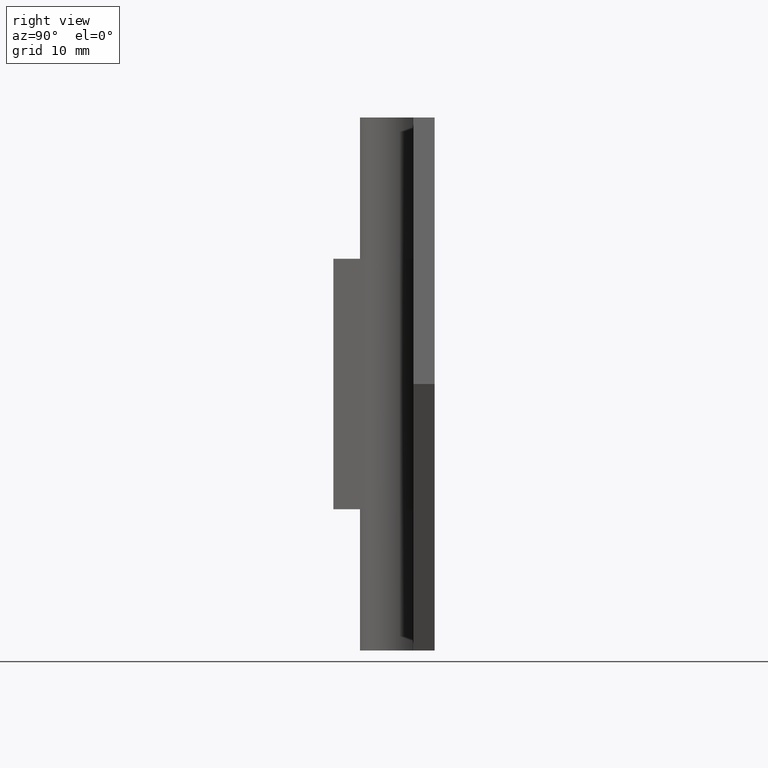
[diagram: clean part render]
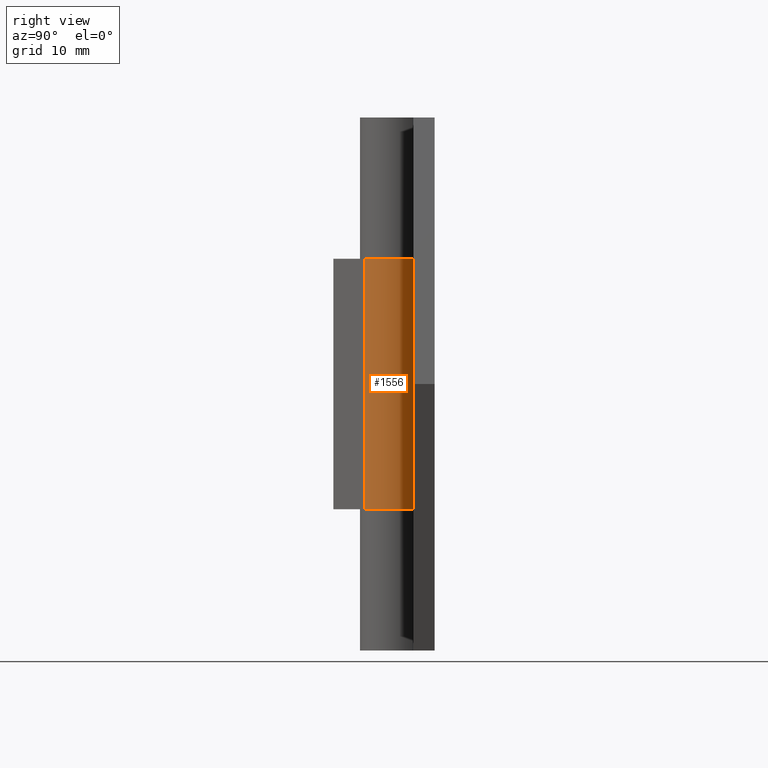
[diagram: same view with one face highlighted and labeled with its STEP entity id]
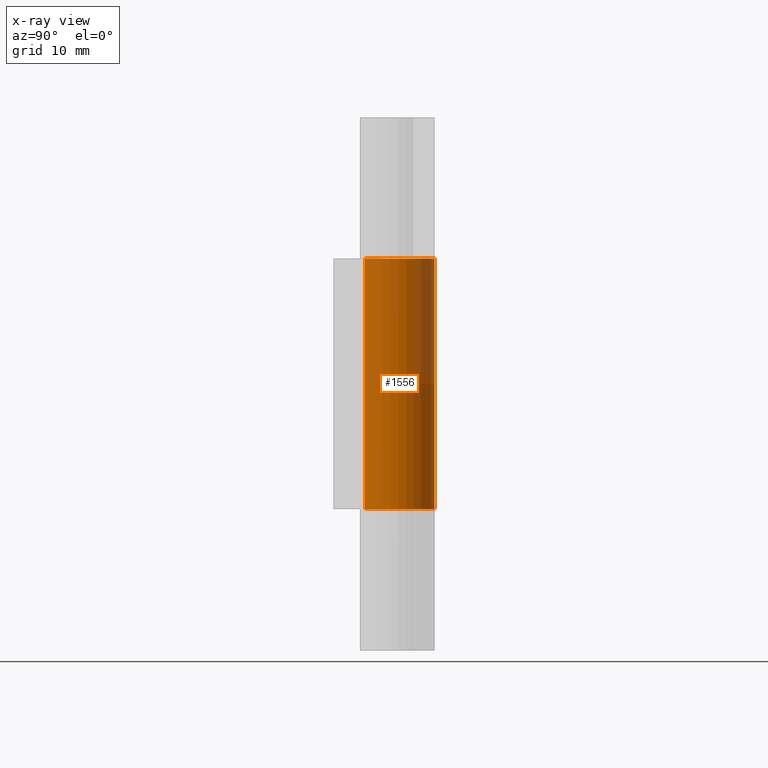
[diagram: x-ray of the same camera — body ghosted, the highlighted face saturated]
A machine part, right view. The second image highlights one B-rep face of the part: STEP entity #1556.
The next image is the same camera in x-ray: the body ghosted, the highlighted face saturated — about 30% of this face is hidden behind the body in this view.
In plain terms, the highlighted face is a freeform B-spline surface patch.
Its self-contained STEP definition (entity closure, byte-faithful):
#1293=CARTESIAN_POINT('',(0.0,3.500000000000000,13.250000000000000));
#1294=VERTEX_POINT('',#1293);
#1300=CARTESIAN_POINT('',(1.749999922191365,-3.031088958168370,13.250000000000000));
#1301=VERTEX_POINT('',#1300);
#1302=CARTESIAN_POINT('',(0.0,3.500000000000000,13.250000000000000));
#1303=CARTESIAN_POINT('',(2.685644493612853,3.499999999999999,13.250000000000007));
#1304=CARTESIAN_POINT('',(3.380740403638624,0.905866614466696,13.250000000000000));
#1305=CARTESIAN_POINT('',(4.075836313664395,-1.688266771066608,13.250000000000007));
#1306=CARTESIAN_POINT('',(1.749999922191366,-3.031088958168370,13.250000000000000));
#1314=(BOUNDED_CURVE()B_SPLINE_CURVE(2,(#1302,#1303,#1304,#1305,#1306),.UNSPECIFIED.,.F.,.U.)B_SPLINE_CURVE_WITH_KNOTS((3,2,3),(0.0,0.500000000000000,1.0),.UNSPECIFIED.)CURVE()GEOMETRIC_REPRESENTATION_ITEM()RATIONAL_B_SPLINE_CURVE((1.0,0.793353336384480,1.0,0.793353336384480,1.0))REPRESENTATION_ITEM(''));
#1315=EDGE_CURVE('',#1294,#1301,#1314,.T.);
#1415=CARTESIAN_POINT('',(1.749999922191365,-3.031088958168370,36.750000000000000));
#1416=VERTEX_POINT('',#1415);
#1422=CARTESIAN_POINT('',(0.0,3.500000000000000,36.750000000000000));
#1423=VERTEX_POINT('',#1422);
#1424=CARTESIAN_POINT('',(0.0,3.500000000000000,36.750000000000000));
#1425=CARTESIAN_POINT('',(2.685644493612853,3.499999999999999,36.749999999999993));
#1426=CARTESIAN_POINT('',(3.380740403638624,0.905866614466696,36.750000000000000));
#1427=CARTESIAN_POINT('',(4.075836313664395,-1.688266771066608,36.749999999999993));
#1428=CARTESIAN_POINT('',(1.749999922191366,-3.031088958168370,36.750000000000000));
#1436=(BOUNDED_CURVE()B_SPLINE_CURVE(2,(#1424,#1425,#1426,#1427,#1428),.UNSPECIFIED.,.F.,.U.)B_SPLINE_CURVE_WITH_KNOTS((3,2,3),(0.0,0.500000000000000,1.0),.UNSPECIFIED.)CURVE()GEOMETRIC_REPRESENTATION_ITEM()RATIONAL_B_SPLINE_CURVE((1.0,0.793353336384480,1.0,0.793353336384480,1.0))REPRESENTATION_ITEM(''));
#1437=EDGE_CURVE('',#1423,#1416,#1436,.T.);
#1518=CARTESIAN_POINT('',(1.749999922191365,-3.031088958168370,36.750000000000000));
#1519=CARTESIAN_POINT('',(1.749999922191365,-3.031088958168370,13.250000000000000));
#1520=QUASI_UNIFORM_CURVE('',1,(#1518,#1519),.UNSPECIFIED.,.F.,.U.);
#1521=EDGE_CURVE('',#1416,#1301,#1520,.T.);
#1528=CARTESIAN_POINT('',(1.616120146322617,-3.104537916123775,37.337500000000013));
#1529=CARTESIAN_POINT('',(1.616120146322617,-3.104537916123775,12.647812500000001));
#1530=CARTESIAN_POINT('',(4.152634015955163,-1.784112372325566,37.337500000000006));
#1531=CARTESIAN_POINT('',(4.152634015955163,-1.784112372325566,12.647812500000001));
#1532=CARTESIAN_POINT('',(3.364415935784115,0.964730745359495,37.337500000000013));
#1533=CARTESIAN_POINT('',(3.364415935784115,0.964730745359495,12.647812500000001));
#1534=CARTESIAN_POINT('',(2.576197855613070,3.713573863044557,37.337500000000006));
#1535=CARTESIAN_POINT('',(2.576197855613070,3.713573863044557,12.647812500000001));
#1536=CARTESIAN_POINT('',(-0.274606835047454,3.489210668065946,37.337500000000013));
#1537=CARTESIAN_POINT('',(-0.274606835047454,3.489210668065946,12.647812500000001));
#1545=(BOUNDED_SURFACE()B_SPLINE_SURFACE(1,2,((#1528,#1530,#1532,#1534,#1536),(#1529,#1531,#1533,#1535,#1537)),.UNSPECIFIED.,.F.,.F.,.U.)B_SPLINE_SURFACE_WITH_KNOTS((2,2),(3,2,3),(0.0,24.689687500000009),(0.0,4.992060032156527,9.984120064313053),.UNSPECIFIED.)GEOMETRIC_REPRESENTATION_ITEM()RATIONAL_B_SPLINE_SURFACE(((1.0,0.774392644082186,1.0,0.774392644082186,1.0),(1.0,0.774392644082186,1.0,0.774392644082186,1.0)))REPRESENTATION_ITEM('')SURFACE());
#1546=ORIENTED_EDGE('',*,*,#1315,.F.);
#1547=CARTESIAN_POINT('',(0.0,3.500000000000000,36.750000000000000));
#1548=CARTESIAN_POINT('',(0.0,3.500000000000000,13.250000000000000));
#1549=QUASI_UNIFORM_CURVE('',1,(#1547,#1548),.UNSPECIFIED.,.F.,.U.);
#1550=EDGE_CURVE('',#1423,#1294,#1549,.T.);
#1551=ORIENTED_EDGE('',*,*,#1550,.F.);
#1552=ORIENTED_EDGE('',*,*,#1437,.T.);
#1553=ORIENTED_EDGE('',*,*,#1521,.T.);
#1554=EDGE_LOOP('',(#1546,#1551,#1552,#1553));
#1555=FACE_OUTER_BOUND('',#1554,.T.);
#1556=ADVANCED_FACE('',(#1555),#1545,.T.);